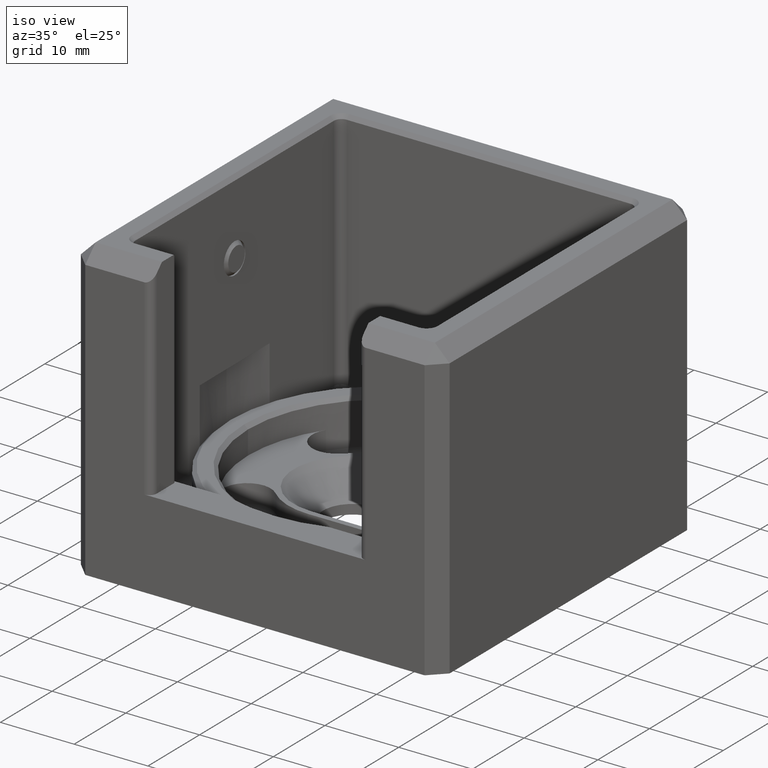
[diagram: clean part render]
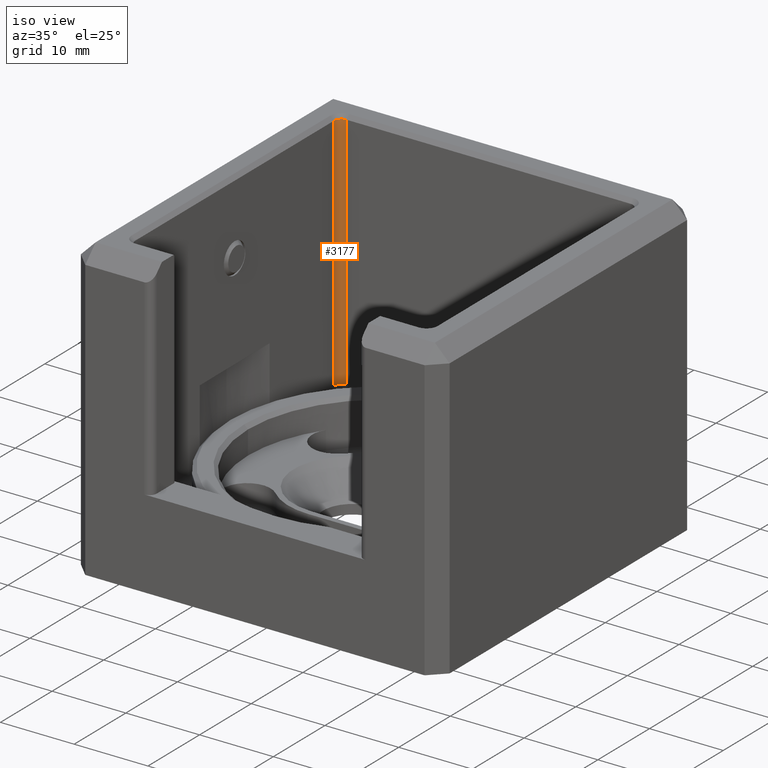
[diagram: same view with one face highlighted and labeled with its STEP entity id]
A machine part, iso view. The second image highlights one B-rep face of the part: STEP entity #3177.
In plain terms, the highlighted cylindrical surface (edge-blend (fillet) strip) has radius 1 mm, axis along (0, 0, -1).
Its self-contained STEP definition (entity closure, byte-faithful):
#1030 = DIRECTION ( 'NONE',  ( -0.0000000000000000000, -0.0000000000000000000, 1.000000000000000000 ) ) ;
#1452 = VECTOR ( 'NONE', #19273, 1000.000000000000000 ) ;
#3177 = ADVANCED_FACE ( 'NONE', ( #24943 ), #12447, .F. ) ;
#3201 = CARTESIAN_POINT ( 'NONE',  ( -19.25000000000000400, 20.25000000000000000, 19.50000000000000000 ) ) ;
#3611 = CIRCLE ( 'NONE', #21071, 1.000000000000000900 ) ;
#4409 = CARTESIAN_POINT ( 'NONE',  ( -19.25000000000000400, 19.25000000000000000, -15.00000000000000400 ) ) ;
#4543 = VERTEX_POINT ( 'NONE', #21471 ) ;
#4641 = CARTESIAN_POINT ( 'NONE',  ( -19.25000000000000400, 20.25000000000000000, -15.00000000000000400 ) ) ;
#6636 = VERTEX_POINT ( 'NONE', #14125 ) ;
#6880 = ORIENTED_EDGE ( 'NONE', *, *, #12458, .T. ) ;
#7144 = VECTOR ( 'NONE', #15570, 1000.000000000000000 ) ;
#8157 = DIRECTION ( 'NONE',  ( -1.000000000000000000, 0.0000000000000000000, 0.0000000000000000000 ) ) ;
#8273 = DIRECTION ( 'NONE',  ( -1.000000000000000000, 0.0000000000000000000, 0.0000000000000000000 ) ) ;
#8633 = VERTEX_POINT ( 'NONE', #18629 ) ;
#9387 = CARTESIAN_POINT ( 'NONE',  ( -19.25000000000000400, 19.25000000000000000, 19.50000000000000000 ) ) ;
#9421 = ORIENTED_EDGE ( 'NONE', *, *, #13884, .T. ) ;
#9888 = VERTEX_POINT ( 'NONE', #3201 ) ;
#11287 = AXIS2_PLACEMENT_3D ( 'NONE', #4409, #16540, #8273 ) ;
#11627 = EDGE_CURVE ( 'NONE', #9888, #8633, #18609, .T. ) ;
#12447 = CYLINDRICAL_SURFACE ( 'NONE', #11287, 1.000000000000000900 ) ;
#12458 = EDGE_CURVE ( 'NONE', #9888, #6636, #24335, .T. ) ;
#13884 = EDGE_CURVE ( 'NONE', #4543, #8633, #3611, .T. ) ;
#14125 = CARTESIAN_POINT ( 'NONE',  ( -20.25000000000000400, 19.25000000000000000, 19.50000000000000000 ) ) ;
#14342 = DIRECTION ( 'NONE',  ( 0.0000000000000000000, 0.0000000000000000000, -1.000000000000000000 ) ) ;
#15408 = ORIENTED_EDGE ( 'NONE', *, *, #11627, .F. ) ;
#15570 = DIRECTION ( 'NONE',  ( 0.0000000000000000000, 0.0000000000000000000, 1.000000000000000000 ) ) ;
#15714 = AXIS2_PLACEMENT_3D ( 'NONE', #9387, #1030, #17582 ) ;
#16540 = DIRECTION ( 'NONE',  ( 0.0000000000000000000, 0.0000000000000000000, -1.000000000000000000 ) ) ;
#17165 = EDGE_LOOP ( 'NONE', ( #15408, #6880, #21884, #9421 ) ) ;
#17582 = DIRECTION ( 'NONE',  ( 1.000000000000000000, 0.0000000000000000000, 0.0000000000000000000 ) ) ;
#18407 = CARTESIAN_POINT ( 'NONE',  ( -19.25000000000000400, 19.25000000000000000, -13.00000000000000400 ) ) ;
#18609 = LINE ( 'NONE', #4641, #1452 ) ;
#18629 = CARTESIAN_POINT ( 'NONE',  ( -19.25000000000000400, 20.25000000000000000, -13.00000000000000400 ) ) ;
#19273 = DIRECTION ( 'NONE',  ( -0.0000000000000000000, 0.0000000000000000000, -1.000000000000000000 ) ) ;
#21071 = AXIS2_PLACEMENT_3D ( 'NONE', #18407, #14342, #8157 ) ;
#21471 = CARTESIAN_POINT ( 'NONE',  ( -20.25000000000000400, 19.25000000000000000, -13.00000000000000200 ) ) ;
#21685 = CARTESIAN_POINT ( 'NONE',  ( -20.25000000000000400, 19.25000000000000000, 20.00000000000000000 ) ) ;
#21884 = ORIENTED_EDGE ( 'NONE', *, *, #24757, .F. ) ;
#24335 = CIRCLE ( 'NONE', #15714, 1.000000000000000900 ) ;
#24757 = EDGE_CURVE ( 'NONE', #4543, #6636, #24843, .T. ) ;
#24843 = LINE ( 'NONE', #21685, #7144 ) ;
#24943 = FACE_OUTER_BOUND ( 'NONE', #17165, .T. ) ;